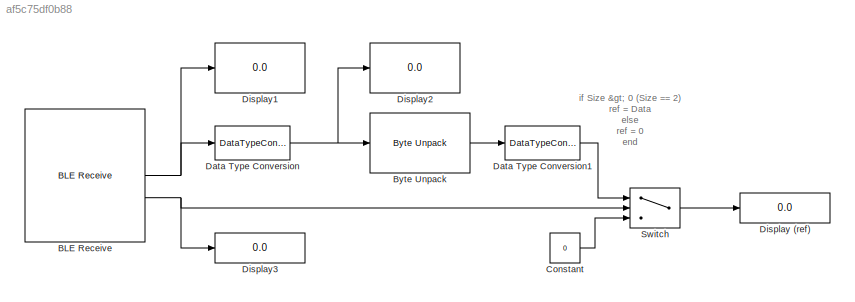
MODEL slx_af5c75df0b88
KIND model
CONFIG AbsTol = auto
CONFIG EnableMultiTasking = on
CONFIG FixedStep = 0.005
CONFIG MaxStep = auto
CONFIG MinStep = auto
CONFIG RelTol = 1e-3
CONFIG SampleTimeConstraint = Unconstrained
CONFIG SolverName = FixedStepDiscrete
CONFIG StartTime = 0.0
CONFIG StopTime = inf
BLOCK [Reference] BLE Receive  REF=arduinolib/BLE Receive
  SourceBlock = arduinolib/BLE Receive
  SourceProductName = Common
  SourceType = codertarget.arduinobase.internal.arduinoBLEReceive
BLOCK [Reference] Byte Unpack  REF=svdutilitieslib/Byte Unpack
  SourceBlock = svdutilitieslib/Byte Unpack
  SourceType = Byte Unpack
BLOCK [Constant] Constant
  Value = 0
BLOCK [DataTypeConversion] Data Type Conversion
  OutDataTypeStr = uint8
  RndMeth = Floor
  SaturateOnIntegerOverflow = off
BLOCK [DataTypeConversion] Data Type Conversion1
  OutDataTypeStr = double
  RndMeth = Floor
  SaturateOnIntegerOverflow = off
BLOCK [Display] Display (ref)
  Decimation = 1
BLOCK [Display] Display1
  Decimation = 1
BLOCK [Display] Display2
  Decimation = 1
BLOCK [Display] Display3
  Decimation = 1
BLOCK [Switch] Switch
  Criteria = u2 > Threshold
  InputSameDT = off
  SaturateOnIntegerOverflow = off
ANNOTATION (root): if Size > 0 (Size == 2) ref = Data else ref = 0 end
NET BLE Receive:1 -> Data Type Conversion:1, Display1:1
NET BLE Receive:2 -> Display3:1, Switch:2
LINE Byte Unpack:1 -> Data Type Conversion1:1
LINE Constant:1 -> Switch:3
LINE Data Type Conversion1:1 -> Switch:1
NET Data Type Conversion:1 -> Byte Unpack:1, Display2:1
LINE Switch:1 -> Display (ref):1
note: NET lines group one-source signal fan-out (src -> all destinations, sorted); 1:1 wires keep LINE
